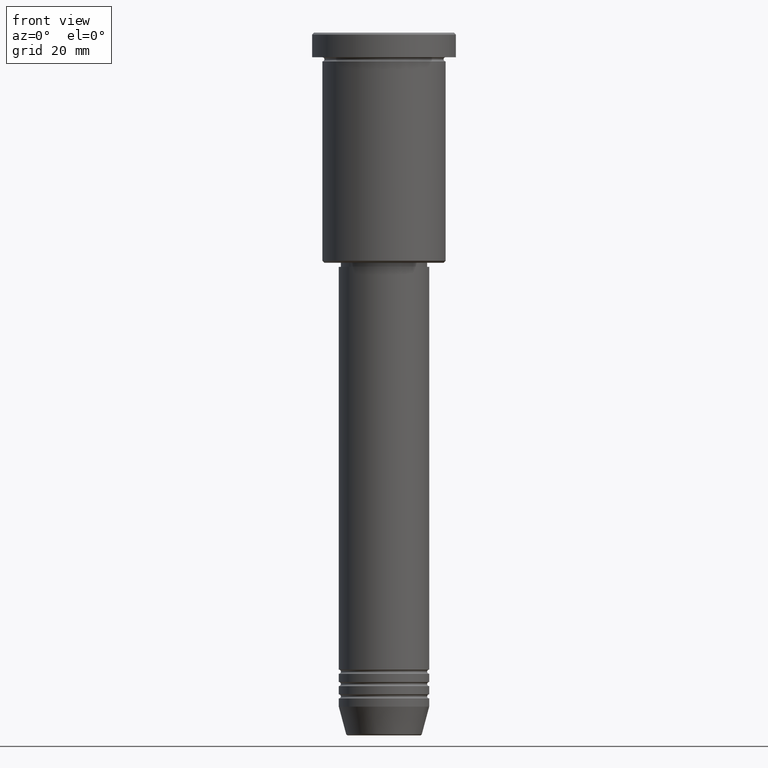
[diagram: clean part render]
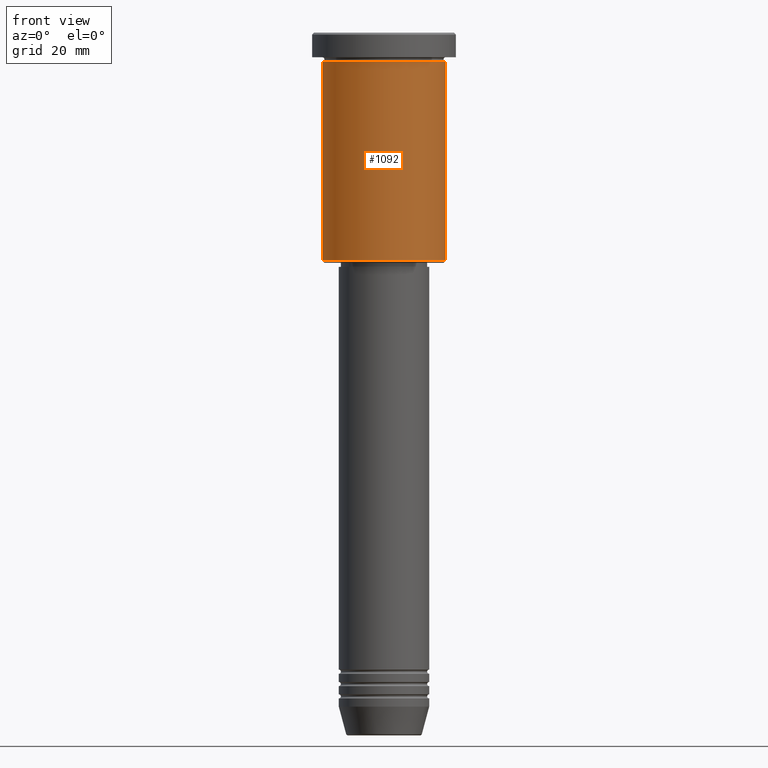
[diagram: same view with one face highlighted and labeled with its STEP entity id]
A machine part, front view. The second image highlights one B-rep face of the part: STEP entity #1092.
In plain terms, the highlighted cylindrical surface (partial cylindrical patch) has radius 15 mm, axis along (-0, -0, 1).
Its self-contained STEP definition (entity closure, byte-faithful):
#34 = EDGE_LOOP ( 'NONE', ( #1010, #97, #870, #136 ) ) ;
#64 = EDGE_CURVE ( 'NONE', #1123, #638, #1002, .T. ) ;
#66 = CARTESIAN_POINT ( 'NONE',  ( -15.00000000000000000, 1.836970198721029589E-15, 0.000000000000000000 ) ) ;
#88 = DIRECTION ( 'NONE',  ( -0.000000000000000000, -0.000000000000000000, 1.000000000000000000 ) ) ;
#91 = VECTOR ( 'NONE', #127, 1000.000000000000000 ) ;
#92 = VERTEX_POINT ( 'NONE', #807 ) ;
#93 = CIRCLE ( 'NONE', #309, 15.00000000000000000 ) ;
#97 = ORIENTED_EDGE ( 'NONE', *, *, #881, .T. ) ;
#99 = CYLINDRICAL_SURFACE ( 'NONE', #790, 15.00000000000000000 ) ;
#127 = DIRECTION ( 'NONE',  ( -0.000000000000000000, -0.000000000000000000, 1.000000000000000000 ) ) ;
#136 = ORIENTED_EDGE ( 'NONE', *, *, #955, .F. ) ;
#171 = AXIS2_PLACEMENT_3D ( 'NONE', #575, #373, #198 ) ;
#198 = DIRECTION ( 'NONE',  ( 1.000000000000000000, 0.000000000000000000, 0.000000000000000000 ) ) ;
#309 = AXIS2_PLACEMENT_3D ( 'NONE', #1102, #88, #453 ) ;
#373 = DIRECTION ( 'NONE',  ( -0.000000000000000000, -0.000000000000000000, 1.000000000000000000 ) ) ;
#393 = CARTESIAN_POINT ( 'NONE',  ( -15.00000000000000000, 1.836970198721029589E-15, -6.999999999999995559 ) ) ;
#410 = LINE ( 'NONE', #1126, #91 ) ;
#453 = DIRECTION ( 'NONE',  ( -1.000000000000000000, 0.000000000000000000, 0.000000000000000000 ) ) ;
#558 = CARTESIAN_POINT ( 'NONE',  ( 15.00000000000000000, 0.000000000000000000, -6.999999999999995559 ) ) ;
#562 = EDGE_CURVE ( 'NONE', #92, #799, #410, .T. ) ;
#575 = CARTESIAN_POINT ( 'NONE',  ( 0.000000000000000000, 0.000000000000000000, -6.999999999999995559 ) ) ;
#638 = VERTEX_POINT ( 'NONE', #393 ) ;
#643 = CARTESIAN_POINT ( 'NONE',  ( -15.00000000000000000, 1.836970198721029589E-15, -55.50000000000000711 ) ) ;
#733 = CIRCLE ( 'NONE', #171, 15.00000000000000000 ) ;
#782 = CARTESIAN_POINT ( 'NONE',  ( 0.000000000000000000, 0.000000000000000000, 0.000000000000000000 ) ) ;
#790 = AXIS2_PLACEMENT_3D ( 'NONE', #782, #1133, #1047 ) ;
#799 = VERTEX_POINT ( 'NONE', #558 ) ;
#807 = CARTESIAN_POINT ( 'NONE',  ( 15.00000000000000000, 0.000000000000000000, -55.50000000000000711 ) ) ;
#870 = ORIENTED_EDGE ( 'NONE', *, *, #562, .T. ) ;
#881 = EDGE_CURVE ( 'NONE', #1123, #92, #93, .T. ) ;
#923 = FACE_OUTER_BOUND ( 'NONE', #34, .T. ) ;
#955 = EDGE_CURVE ( 'NONE', #638, #799, #733, .T. ) ;
#997 = DIRECTION ( 'NONE',  ( -0.000000000000000000, -0.000000000000000000, 1.000000000000000000 ) ) ;
#1002 = LINE ( 'NONE', #66, #1153 ) ;
#1010 = ORIENTED_EDGE ( 'NONE', *, *, #64, .F. ) ;
#1047 = DIRECTION ( 'NONE',  ( 1.000000000000000000, 0.000000000000000000, 0.000000000000000000 ) ) ;
#1092 = ADVANCED_FACE ( 'NONE', ( #923 ), #99, .T. ) ;
#1102 = CARTESIAN_POINT ( 'NONE',  ( 0.000000000000000000, 0.000000000000000000, -55.50000000000000711 ) ) ;
#1123 = VERTEX_POINT ( 'NONE', #643 ) ;
#1126 = CARTESIAN_POINT ( 'NONE',  ( 15.00000000000000000, 0.000000000000000000, 0.000000000000000000 ) ) ;
#1133 = DIRECTION ( 'NONE',  ( -0.000000000000000000, -0.000000000000000000, 1.000000000000000000 ) ) ;
#1153 = VECTOR ( 'NONE', #997, 1000.000000000000000 ) ;